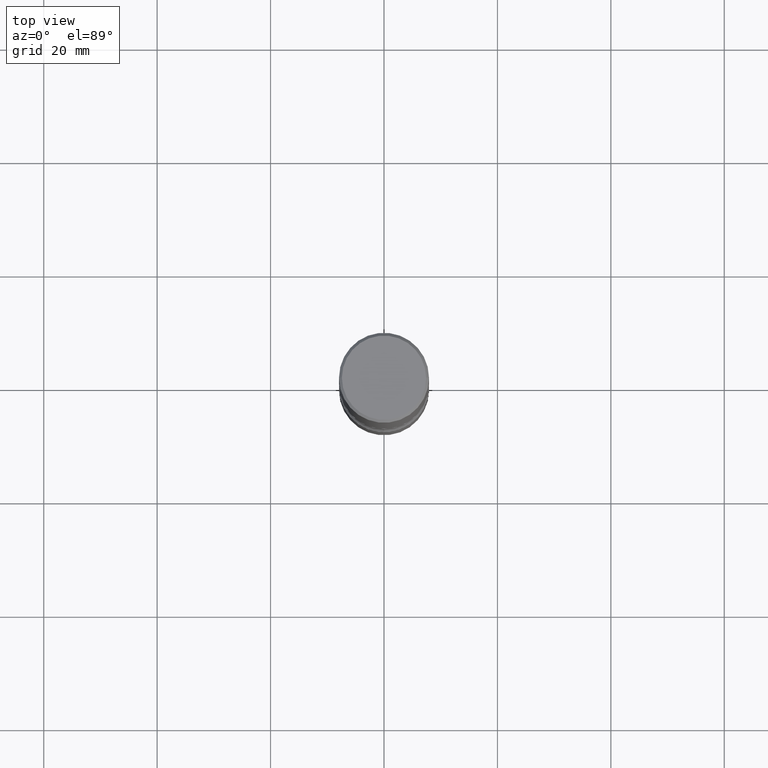
[diagram: clean part render]
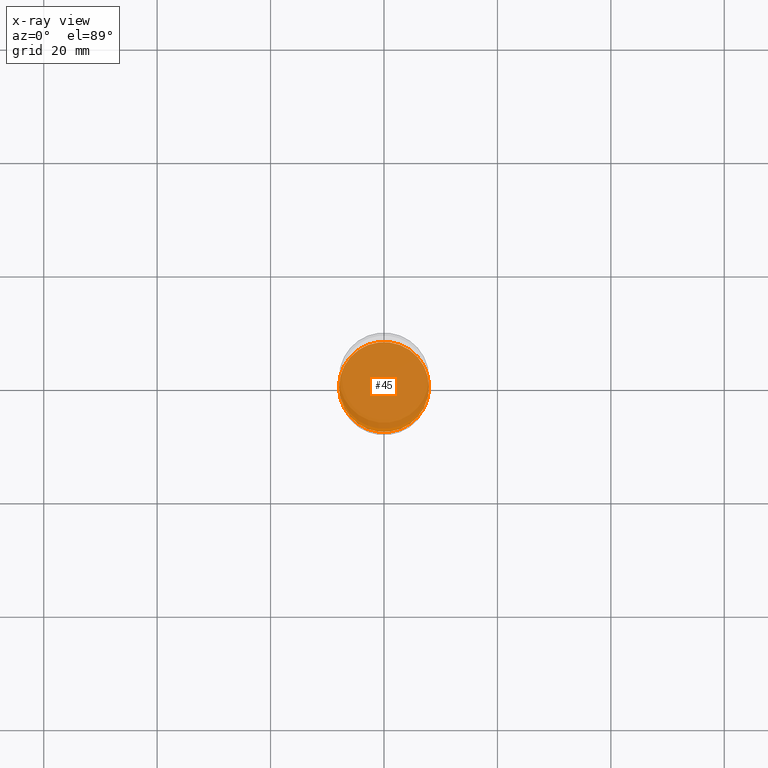
[diagram: x-ray — body ghosted, one internal face saturated and labeled with its STEP entity id]
A machine part, top view, then the same camera in x-ray: the body is ghosted and one INTERNAL B-rep face — a face not visible from any outside direction — is saturated and labeled: STEP entity #45.
In plain terms, the highlighted planar face has unit normal (0, -0, -1).
Its self-contained STEP definition (entity closure, byte-faithful):
#12 = DIRECTION ( 'NONE',  ( -1.000000000000000000, 6.982962677686265922E-15, -4.876176775795935793E-29 ) ) ;
#14 = CARTESIAN_POINT ( 'NONE',  ( 9.170508023194261117E-29, -1.309305502066179584E-14, -3.749999999999999556 ) ) ;
#15 = DIRECTION ( 'NONE',  ( -2.445468806185136597E-29, 3.491481338843145583E-15, 1.000000000000000000 ) ) ;
#18 = ORIENTED_EDGE ( 'NONE', *, *, #31, .T. ) ;
#19 = DIRECTION ( 'NONE',  ( 1.000000000000000000, -6.982962677686265133E-15, 0.000000000000000000 ) ) ;
#20 = CARTESIAN_POINT ( 'NONE',  ( 9.170508023194261117E-29, -1.309305502066179584E-14, -3.749999999999999556 ) ) ;
#31 = EDGE_CURVE ( 'NONE', #411, #347, #69, .T. ) ;
#45 = ADVANCED_FACE ( 'NONE', ( #90 ), #241, .F. ) ;
#54 = CARTESIAN_POINT ( 'NONE',  ( -0.3125000000000001665, -1.302859869814712249E-14, -3.749999999999999556 ) ) ;
#69 = CIRCLE ( 'NONE', #217, 0.3125000000000001665 ) ;
#84 = AXIS2_PLACEMENT_3D ( 'NONE', #14, #98, #19 ) ;
#88 = CIRCLE ( 'NONE', #84, 0.3125000000000001665 ) ;
#90 = FACE_OUTER_BOUND ( 'NONE', #368, .T. ) ;
#94 = DIRECTION ( 'NONE',  ( 1.000000000000000000, -6.982962677686265133E-15, 0.000000000000000000 ) ) ;
#98 = DIRECTION ( 'NONE',  ( -2.445468806185136597E-29, 3.491481338843145583E-15, 1.000000000000000000 ) ) ;
#109 = AXIS2_PLACEMENT_3D ( 'NONE', #20, #233, #12 ) ;
#217 = AXIS2_PLACEMENT_3D ( 'NONE', #290, #15, #94 ) ;
#233 = DIRECTION ( 'NONE',  ( 2.438088387897960049E-29, -3.491481338843145188E-15, -1.000000000000000000 ) ) ;
#241 = PLANE ( 'NONE',  #109 ) ;
#286 = EDGE_CURVE ( 'NONE', #347, #411, #88, .T. ) ;
#290 = CARTESIAN_POINT ( 'NONE',  ( 9.170508023194261117E-29, -1.309305502066179584E-14, -3.749999999999999556 ) ) ;
#340 = CARTESIAN_POINT ( 'NONE',  ( 0.3125000000000001665, -1.527523085743875418E-14, -3.749999999999999556 ) ) ;
#347 = VERTEX_POINT ( 'NONE', #340 ) ;
#368 = EDGE_LOOP ( 'NONE', ( #505, #18 ) ) ;
#411 = VERTEX_POINT ( 'NONE', #54 ) ;
#505 = ORIENTED_EDGE ( 'NONE', *, *, #286, .T. ) ;